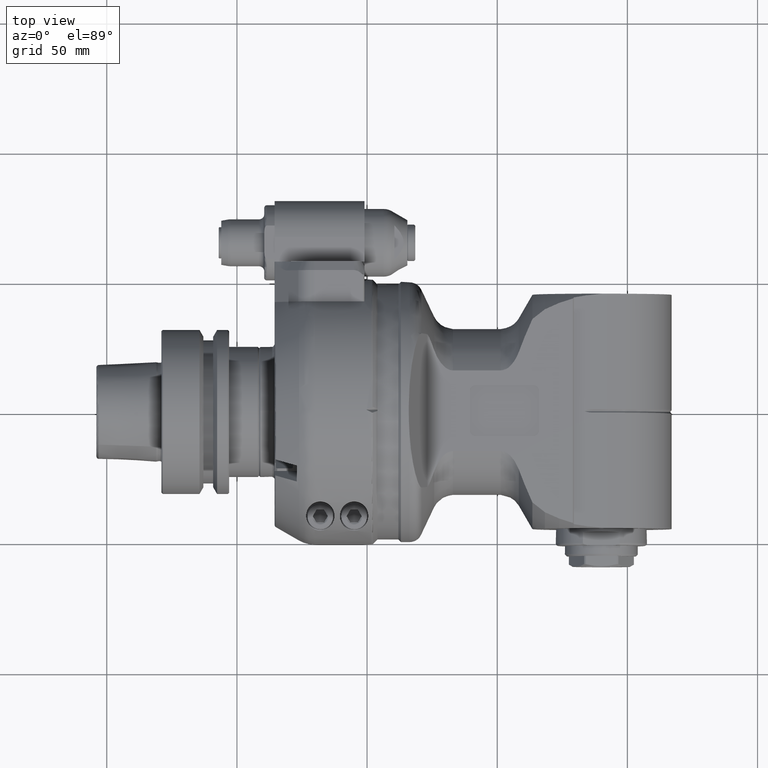
[diagram: clean part render]
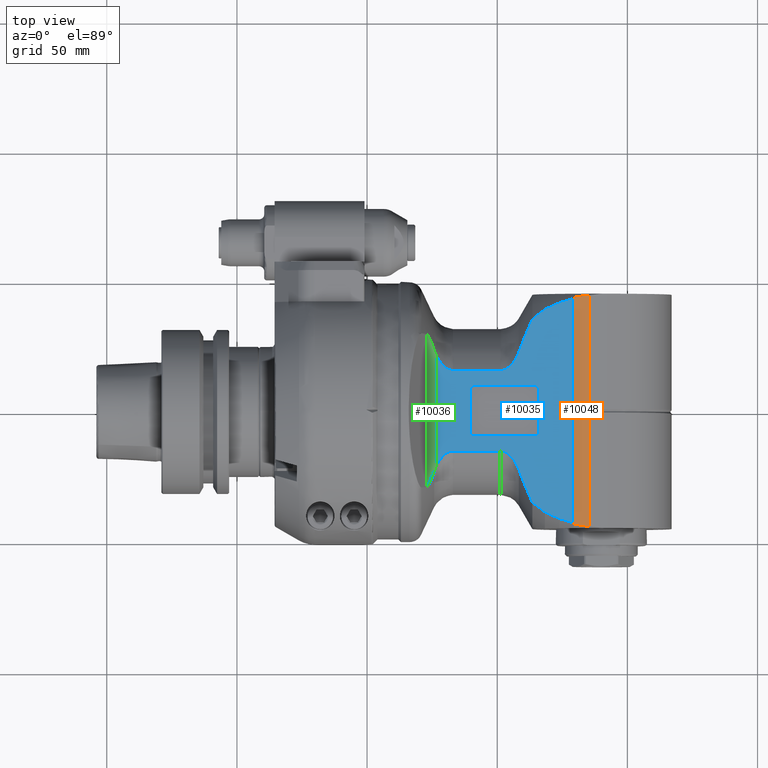
[diagram: same view with three faces highlighted in distinct colors, each labeled with its STEP entity id]
A machine part, top view with three faces highlighted in distinct colors.
Their STEP definitions:

[orange] entity #10048 — the highlighted planar face has unit normal (0, 0, 1).
#72=(
BOUNDED_CURVE()
B_SPLINE_CURVE(2,(#19118,#19119,#19120),.UNSPECIFIED.,.F.,.F.)
B_SPLINE_CURVE_WITH_KNOTS((3,3),(0.593022336846384,0.70157453803176),
 .UNSPECIFIED.)
CURVE()
GEOMETRIC_REPRESENTATION_ITEM()
RATIONAL_B_SPLINE_CURVE((1.00001437351432,1.00001457226138,1.00001436215645))
REPRESENTATION_ITEM('')
);
#73=(
BOUNDED_CURVE()
B_SPLINE_CURVE(2,(#19173,#19174,#19175),.UNSPECIFIED.,.F.,.F.)
B_SPLINE_CURVE_WITH_KNOTS((3,3),(0.590006767742405,0.698558968926819),
 .UNSPECIFIED.)
CURVE()
GEOMETRIC_REPRESENTATION_ITEM()
RATIONAL_B_SPLINE_CURVE((1.0000143621362,1.00001457224083,1.00001437349405))
REPRESENTATION_ITEM('')
);
#208=B_SPLINE_CURVE_WITH_KNOTS('',3,(#19124,#19125,#19126,#19127,#19128,
#19129,#19130,#19131,#19132,#19133,#19134,#19135,#19136),.UNSPECIFIED.,
 .F.,.F.,(4,3,3,3,4),(0.,0.25,0.5,0.75,1.),.UNSPECIFIED.);
#209=B_SPLINE_CURVE_WITH_KNOTS('',3,(#19138,#19139,#19140,#19141,#19142,
#19143,#19144,#19145,#19146,#19147,#19148,#19149,#19150,#19151,#19152,#19153,
#19154,#19155),.UNSPECIFIED.,.F.,.F.,(4,2,2,2,2,2,2,2,4),(-1.19105853373548,
-1.17004342643613,-1.15118076479886,-1.145947321921,-1.14167988908612,-1.13741245625123,
-1.13217901337337,-1.1133163517361,-1.09230124444175),.UNSPECIFIED.);
#210=B_SPLINE_CURVE_WITH_KNOTS('',3,(#19157,#19158,#19159,#19160,#19161,
#19162,#19163,#19164,#19165,#19166,#19167,#19168,#19169),.UNSPECIFIED.,
 .F.,.F.,(4,3,3,3,4),(0.,0.25,0.5,0.75,1.),.UNSPECIFIED.);
#640=LINE('',#19103,#1280);
#641=LINE('',#19122,#1281);
#642=LINE('',#19171,#1282);
#1280=VECTOR('',#12886,87.11621977575);
#1281=VECTOR('',#12893,43.8047902956104);
#1282=VECTOR('',#12894,43.8047903018304);
#1994=PLANE('',#10919);
#2366=FACE_OUTER_BOUND('',#2984,.T.);
#2984=EDGE_LOOP('',(#7804,#7805,#7806,#7807,#7808,#7809,#7810,#7811,#7812,
#7813));
#3690=CIRCLE('',#10920,5928.37642691631);
#3691=CIRCLE('',#10921,5928.23711777422);
#4546=VERTEX_POINT('',#19101);
#4547=VERTEX_POINT('',#19102);
#4549=VERTEX_POINT('',#19115);
#4550=VERTEX_POINT('',#19117);
#4551=VERTEX_POINT('',#19121);
#4552=VERTEX_POINT('',#19123);
#4553=VERTEX_POINT('',#19137);
#4554=VERTEX_POINT('',#19156);
#4555=VERTEX_POINT('',#19170);
#4556=VERTEX_POINT('',#19172);
#5766=EDGE_CURVE('',#4546,#4547,#640,.T.);
#5770=EDGE_CURVE('',#4549,#4547,#3690,.T.);
#5771=EDGE_CURVE('',#4549,#4550,#72,.T.);
#5772=EDGE_CURVE('',#4551,#4550,#641,.T.);
#5773=EDGE_CURVE('',#4552,#4551,#208,.T.);
#5774=EDGE_CURVE('',#4553,#4552,#209,.F.);
#5775=EDGE_CURVE('',#4554,#4553,#210,.T.);
#5776=EDGE_CURVE('',#4555,#4554,#642,.T.);
#5777=EDGE_CURVE('',#4555,#4556,#73,.T.);
#5778=EDGE_CURVE('',#4546,#4556,#3691,.T.);
#7804=ORIENTED_EDGE('',*,*,#5766,.T.);
#7805=ORIENTED_EDGE('',*,*,#5770,.F.);
#7806=ORIENTED_EDGE('',*,*,#5771,.T.);
#7807=ORIENTED_EDGE('',*,*,#5772,.F.);
#7808=ORIENTED_EDGE('',*,*,#5773,.F.);
#7809=ORIENTED_EDGE('',*,*,#5774,.F.);
#7810=ORIENTED_EDGE('',*,*,#5775,.F.);
#7811=ORIENTED_EDGE('',*,*,#5776,.F.);
#7812=ORIENTED_EDGE('',*,*,#5777,.T.);
#7813=ORIENTED_EDGE('',*,*,#5778,.F.);
#10048=ADVANCED_FACE('',(#2366),#1994,.T.);
#10919=AXIS2_PLACEMENT_3D('',#19114,#12889,#12890);
#10920=AXIS2_PLACEMENT_3D('',#19116,#12891,#12892);
#10921=AXIS2_PLACEMENT_3D('',#19176,#12895,#12896);
#12886=DIRECTION('',(0.,-1.,0.));
#12889=DIRECTION('center_axis',(0.,0.,1.));
#12890=DIRECTION('ref_axis',(1.,0.,0.));
#12891=DIRECTION('center_axis',(0.,0.,-1.));
#12892=DIRECTION('ref_axis',(-0.163953157776388,-0.986468125209908,0.));
#12893=DIRECTION('',(1.32764519473999E-7,-0.999999999999991,2.87918339461897E-9));
#12894=DIRECTION('',(-1.33097299006099E-7,-0.999999999999991,-2.88630361638497E-9));
#12895=DIRECTION('center_axis',(0.,0.,-1.));
#12896=DIRECTION('ref_axis',(-0.163128243155629,0.986604873434628,0.));
#19101=CARTESIAN_POINT('',(79.49,43.55810988787,27.5));
#19102=CARTESIAN_POINT('',(79.49,-43.55810988787,27.5));
#19103=CARTESIAN_POINT('',(79.49,43.55810988787,27.5));
#19114=CARTESIAN_POINT('Origin',(58.74015767835,0.8858735483008,27.5));
#19115=CARTESIAN_POINT('',(84.38034694252,-44.36879534087,27.5));
#19116=CARTESIAN_POINT('Origin',(1051.46603568003,5804.59626951088,27.5));
#19117=CARTESIAN_POINT('',(85.46381930714,-44.43558601805,27.5));
#19118=CARTESIAN_POINT('Ctrl Pts',(84.3803469425199,-44.3687953408727,27.5));
#19119=CARTESIAN_POINT('Ctrl Pts',(84.9216756794156,-44.4021725258532,27.5));
#19120=CARTESIAN_POINT('Ctrl Pts',(85.4638193071398,-44.4355860180531,27.5));
#19121=CARTESIAN_POINT('',(85.4638134737294,-0.630796224615689,27.4999996392381));
#19122=CARTESIAN_POINT('',(85.46381349142,-0.6307957224406,27.49999987388));
#19123=CARTESIAN_POINT('',(83.9104408465,-0.2828427124861,27.5));
#19124=CARTESIAN_POINT('Ctrl Pts',(83.9104408464989,-0.282842712489786,
27.4999999999965));
#19125=CARTESIAN_POINT('Ctrl Pts',(84.0417770461592,-0.320086378596211,
27.4999999999971));
#19126=CARTESIAN_POINT('Ctrl Pts',(84.1726077293787,-0.355264202941987,
27.4999998247939));
#19127=CARTESIAN_POINT('Ctrl Pts',(84.3028940438747,-0.38836316504666,27.4999999999957));
#19128=CARTESIAN_POINT('Ctrl Pts',(84.4331803583708,-0.421462127151333,
27.5000001751975));
#19129=CARTESIAN_POINT('Ctrl Pts',(84.5629221065104,-0.452483010856554,
27.4999999423099));
#19130=CARTESIAN_POINT('Ctrl Pts',(84.6922387873732,-0.481454240540171,
27.4999999999959));
#19131=CARTESIAN_POINT('Ctrl Pts',(84.821555468236,-0.510425470223787,27.5000000576819));
#19132=CARTESIAN_POINT('Ctrl Pts',(84.95044706657,-0.537347035917995,27.5000004195697));
#19133=CARTESIAN_POINT('Ctrl Pts',(85.079028833991,-0.562236327702291,27.4999999999983));
#19134=CARTESIAN_POINT('Ctrl Pts',(85.207610601412,-0.587125619486588,27.499999580427));
#19135=CARTESIAN_POINT('Ctrl Pts',(85.3358826989365,-0.609981882292008,
27.4999991174256));
#19136=CARTESIAN_POINT('Ctrl Pts',(85.4638133762397,-0.630796430365352,
27.4999991753881));
#19137=CARTESIAN_POINT('',(83.91044084645,0.2828427124746,27.5));
#19138=CARTESIAN_POINT('Ctrl Pts',(83.9104408464983,-0.282842712491837,
27.5));
#19139=CARTESIAN_POINT('Ctrl Pts',(83.8413902386131,-0.263261684634919,
27.5));
#19140=CARTESIAN_POINT('Ctrl Pts',(83.774541845351,-0.240117222930763,27.5));
#19141=CARTESIAN_POINT('Ctrl Pts',(83.6549369218228,-0.182117600377863,
27.5));
#19142=CARTESIAN_POINT('Ctrl Pts',(83.5906903120551,-0.14255533049815,27.5));
#19143=CARTESIAN_POINT('Ctrl Pts',(83.5417258196788,-0.0788855821805887,
27.5));
#19144=CARTESIAN_POINT('Ctrl Pts',(83.5311479100739,-0.0608209587944465,
27.5));
#19145=CARTESIAN_POINT('Ctrl Pts',(83.5204682585744,-0.0310064035765991,
27.5));
#19146=CARTESIAN_POINT('Ctrl Pts',(83.5173453260122,-0.0142247761162909,
27.5));
#19147=CARTESIAN_POINT('Ctrl Pts',(83.5173453260122,0.0142247761162909,
27.5));
#19148=CARTESIAN_POINT('Ctrl Pts',(83.5204682585744,0.0310064035765991,
27.5));
#19149=CARTESIAN_POINT('Ctrl Pts',(83.5311479100739,0.0608209587944465,
27.5));
#19150=CARTESIAN_POINT('Ctrl Pts',(83.5417258196788,0.0788855821805887,
27.5));
#19151=CARTESIAN_POINT('Ctrl Pts',(83.5906903120551,0.14255533049815,27.5));
#19152=CARTESIAN_POINT('Ctrl Pts',(83.6549369218228,0.182117600377863,27.5));
#19153=CARTESIAN_POINT('Ctrl Pts',(83.774541845336,0.240117222923484,27.5));
#19154=CARTESIAN_POINT('Ctrl Pts',(83.8413902385814,0.263261684623741,27.5));
#19155=CARTESIAN_POINT('Ctrl Pts',(83.9104408464491,0.282842712477874,27.5));
#19156=CARTESIAN_POINT('',(85.4638134591155,0.630796219652866,27.4999996383393));
#19157=CARTESIAN_POINT('Ctrl Pts',(85.4638133613813,0.630796425918243,27.4999991733291));
#19158=CARTESIAN_POINT('Ctrl Pts',(85.3358089866556,0.609969886850305,27.4999991151884));
#19159=CARTESIAN_POINT('Ctrl Pts',(85.2074808988703,0.58710225229209,27.4999995864679));
#19160=CARTESIAN_POINT('Ctrl Pts',(85.0788592441334,0.56220349887812,27.499999999997));
#19161=CARTESIAN_POINT('Ctrl Pts',(84.9502375893965,0.53730474546415,27.500000413526));
#19162=CARTESIAN_POINT('Ctrl Pts',(84.8213222117629,0.510375601707245,27.500000057343));
#19163=CARTESIAN_POINT('Ctrl Pts',(84.6920015986539,0.481401100307193,27.4999999999983));
#19164=CARTESIAN_POINT('Ctrl Pts',(84.5626809855448,0.452426598907142,27.4999999426535));
#19165=CARTESIAN_POINT('Ctrl Pts',(84.4329551513773,0.421406751811449,27.5000001686794));
#19166=CARTESIAN_POINT('Ctrl Pts',(84.3027080961397,0.388315924348248,27.4999999999989));
#19167=CARTESIAN_POINT('Ctrl Pts',(84.1724610409021,0.355225096885047,27.4999998313185));
#19168=CARTESIAN_POINT('Ctrl Pts',(84.0416929553091,0.320062532532814,27.4999999999967));
#19169=CARTESIAN_POINT('Ctrl Pts',(83.9104408464987,0.282842712490738,27.4999999999956));
#19170=CARTESIAN_POINT('',(85.46381930715,44.43558601805,27.5));
#19171=CARTESIAN_POINT('',(85.46381930715,44.43558601805,27.5));
#19172=CARTESIAN_POINT('',(84.38034694252,44.36879534087,27.5));
#19173=CARTESIAN_POINT('Ctrl Pts',(85.4638193071498,44.4355860180531,27.5));
#19174=CARTESIAN_POINT('Ctrl Pts',(84.9216756794354,44.4021725258538,27.5));
#19175=CARTESIAN_POINT('Ctrl Pts',(84.3803469425199,44.3687953408721,27.5));
#19176=CARTESIAN_POINT('Origin',(1051.44325297502,-5804.45883593123,27.5));

[blue] entity #10035 — the highlighted planar face has unit normal (0, 0, -1).
#57=(
BOUNDED_CURVE()
B_SPLINE_CURVE(2,(#18578,#18579,#18580),.UNSPECIFIED.,.F.,.F.)
B_SPLINE_CURVE_WITH_KNOTS((3,3),(2.0382950868947,3.4431407346025),
 .UNSPECIFIED.)
CURVE()
GEOMETRIC_REPRESENTATION_ITEM()
RATIONAL_B_SPLINE_CURVE((1.39120099195632,1.50411387899985,1.58683863347911))
REPRESENTATION_ITEM('')
);
#58=(
BOUNDED_CURVE()
B_SPLINE_CURVE(2,(#18582,#18583,#18584),.UNSPECIFIED.,.F.,.F.)
B_SPLINE_CURVE_WITH_KNOTS((3,3),(0.672313683726369,1.01595190649596),
 .UNSPECIFIED.)
CURVE()
GEOMETRIC_REPRESENTATION_ITEM()
RATIONAL_B_SPLINE_CURVE((1.09608826691963,1.11929872608591,1.14113299028535))
REPRESENTATION_ITEM('')
);
#59=(
BOUNDED_CURVE()
B_SPLINE_CURVE(2,(#18586,#18587,#18588),.UNSPECIFIED.,.F.,.F.)
B_SPLINE_CURVE_WITH_KNOTS((3,3),(0.468508734557086,0.914034860880229),
 .UNSPECIFIED.)
CURVE()
GEOMETRIC_REPRESENTATION_ITEM()
RATIONAL_B_SPLINE_CURVE((1.00816291257228,1.01172051799496,1.01466260362437))
REPRESENTATION_ITEM('')
);
#60=(
BOUNDED_CURVE()
B_SPLINE_CURVE(2,(#18590,#18591,#18592),.UNSPECIFIED.,.F.,.F.)
B_SPLINE_CURVE_WITH_KNOTS((3,3),(0.114463090604067,0.547281554987654),
 .UNSPECIFIED.)
CURVE()
GEOMETRIC_REPRESENTATION_ITEM()
RATIONAL_B_SPLINE_CURVE((1.00093169133583,1.00265764786769,1.00411481229898))
REPRESENTATION_ITEM('')
);
#61=(
BOUNDED_CURVE()
B_SPLINE_CURVE(2,(#18596,#18597,#18598),.UNSPECIFIED.,.F.,.F.)
B_SPLINE_CURVE_WITH_KNOTS((3,3),(5.24003672906914,5.67285525240857),
 .UNSPECIFIED.)
CURVE()
GEOMETRIC_REPRESENTATION_ITEM()
RATIONAL_B_SPLINE_CURVE((1.00411483084375,1.00265766715033,1.00093171134872))
REPRESENTATION_ITEM('')
);
#62=(
BOUNDED_CURVE()
B_SPLINE_CURVE(2,(#18600,#18601,#18602),.UNSPECIFIED.,.F.,.F.)
B_SPLINE_CURVE_WITH_KNOTS((3,3),(5.17304737846073,5.61856643365126),
 .UNSPECIFIED.)
CURVE()
GEOMETRIC_REPRESENTATION_ITEM()
RATIONAL_B_SPLINE_CURVE((1.01465966149285,1.01171745806901,1.0081597375251))
REPRESENTATION_ITEM('')
);
#63=(
BOUNDED_CURVE()
B_SPLINE_CURVE(2,(#18604,#18605,#18606),.UNSPECIFIED.,.F.,.F.)
B_SPLINE_CURVE_WITH_KNOTS((3,3),(11.9196096717836,12.2632385291226),
 .UNSPECIFIED.)
CURVE()
GEOMETRIC_REPRESENTATION_ITEM()
RATIONAL_B_SPLINE_CURVE((1.14111180490468,1.11927794606308,1.096067917804))
REPRESENTATION_ITEM('')
);
#64=(
BOUNDED_CURVE()
B_SPLINE_CURVE(2,(#18608,#18609,#18610),.UNSPECIFIED.,.F.,.F.)
B_SPLINE_CURVE_WITH_KNOTS((3,3),(11.1418606553672,12.5466422634136),
 .UNSPECIFIED.)
CURVE()
GEOMETRIC_REPRESENTATION_ITEM()
RATIONAL_B_SPLINE_CURVE((1.58677165264341,1.5040503899957,1.39114226903196))
REPRESENTATION_ITEM('')
);
#183=B_SPLINE_CURVE_WITH_KNOTS('',3,(#18484,#18485,#18486,#18487,#18488,
#18489,#18490,#18491,#18492,#18493,#18494,#18495),.UNSPECIFIED.,.F.,.F.,
(4,2,2,2,2,4),(2.93597407218818,3.06178101041217,3.21073255585265,3.42626231511953,
3.6417920743864,3.75064357301499),.UNSPECIFIED.);
#187=B_SPLINE_CURVE_WITH_KNOTS('',3,(#18563,#18564,#18565,#18566,#18567,
#18568,#18569,#18570,#18571,#18572,#18573,#18574,#18575,#18576),
 .UNSPECIFIED.,.F.,.F.,(4,2,2,2,2,2,4),(-3.92313274375493,-3.77858431950851,
-3.54205696695616,-3.36013929421605,-3.17822162147595,-3.04862540059965,
-2.93602857360432),.UNSPECIFIED.);
#188=B_SPLINE_CURVE_WITH_KNOTS('',3,(#18612,#18613,#18614,#18615,#18616,
#18617,#18618,#18619,#18620,#18621,#18622,#18623,#18624,#18625),
 .UNSPECIFIED.,.F.,.F.,(4,2,2,2,2,2,4),(-2.93597407218818,-2.82337724519285,
-2.69378102431655,-2.51186335157645,-2.32994567883634,-2.09341832628399,
-1.94886990203757),.UNSPECIFIED.);
#189=B_SPLINE_CURVE_WITH_KNOTS('',3,(#18628,#18629,#18630,#18631,#18632,
#18633,#18634,#18635,#18636,#18637,#18638,#18639),.UNSPECIFIED.,.F.,.F.,
(4,2,2,2,2,4),(-3.74855301569093,-3.54200246554002,-3.36008479279991,-3.17816712005981,
-3.04857089918352,-2.93597407218818),.UNSPECIFIED.);
#621=LINE('',#18558,#1261);
#622=LINE('',#18561,#1262);
#623=LINE('',#18594,#1263);
#624=LINE('',#18627,#1264);
#625=LINE('',#18642,#1265);
#626=LINE('',#18646,#1266);
#627=LINE('',#18650,#1267);
#628=LINE('',#18654,#1268);
#1261=VECTOR('',#12803,18.39109797347);
#1262=VECTOR('',#12806,41.77019528796);
#1263=VECTOR('',#12807,10.);
#1264=VECTOR('',#12808,18.39109797347);
#1265=VECTOR('',#12809,15.5);
#1266=VECTOR('',#12812,22.5);
#1267=VECTOR('',#12815,15.5);
#1268=VECTOR('',#12818,22.5);
#1856=FACE_BOUND('',#2969,.T.);
#1990=PLANE('',#10886);
#2353=FACE_OUTER_BOUND('',#2968,.T.);
#2968=EDGE_LOOP('',(#7693,#7694,#7695,#7696,#7697,#7698,#7699,#7700,#7701,
#7702,#7703,#7704,#7705,#7706,#7707,#7708));
#2969=EDGE_LOOP('',(#7709,#7710,#7711,#7712,#7713,#7714,#7715,#7716));
#3673=CIRCLE('',#10887,2.);
#3674=CIRCLE('',#10888,2.);
#3675=CIRCLE('',#10889,2.);
#3676=CIRCLE('',#10890,2.);
#4483=VERTEX_POINT('',#18481);
#4484=VERTEX_POINT('',#18483);
#4487=VERTEX_POINT('',#18556);
#4488=VERTEX_POINT('',#18560);
#4489=VERTEX_POINT('',#18562);
#4490=VERTEX_POINT('',#18577);
#4491=VERTEX_POINT('',#18581);
#4492=VERTEX_POINT('',#18585);
#4493=VERTEX_POINT('',#18589);
#4494=VERTEX_POINT('',#18593);
#4495=VERTEX_POINT('',#18595);
#4496=VERTEX_POINT('',#18599);
#4497=VERTEX_POINT('',#18603);
#4498=VERTEX_POINT('',#18607);
#4499=VERTEX_POINT('',#18611);
#4500=VERTEX_POINT('',#18626);
#4501=VERTEX_POINT('',#18640);
#4502=VERTEX_POINT('',#18641);
#4503=VERTEX_POINT('',#18643);
#4504=VERTEX_POINT('',#18645);
#4505=VERTEX_POINT('',#18647);
#4506=VERTEX_POINT('',#18649);
#4507=VERTEX_POINT('',#18651);
#4508=VERTEX_POINT('',#18653);
#5688=EDGE_CURVE('',#4483,#4484,#183,.T.);
#5694=EDGE_CURVE('',#4487,#4483,#621,.T.);
#5695=EDGE_CURVE('',#4484,#4488,#622,.T.);
#5696=EDGE_CURVE('',#4489,#4487,#187,.T.);
#5697=EDGE_CURVE('',#4490,#4489,#57,.T.);
#5698=EDGE_CURVE('',#4491,#4490,#58,.T.);
#5699=EDGE_CURVE('',#4492,#4491,#59,.T.);
#5700=EDGE_CURVE('',#4493,#4492,#60,.T.);
#5701=EDGE_CURVE('',#4494,#4493,#623,.T.);
#5702=EDGE_CURVE('',#4495,#4494,#61,.T.);
#5703=EDGE_CURVE('',#4496,#4495,#62,.T.);
#5704=EDGE_CURVE('',#4497,#4496,#63,.T.);
#5705=EDGE_CURVE('',#4498,#4497,#64,.T.);
#5706=EDGE_CURVE('',#4499,#4498,#188,.T.);
#5707=EDGE_CURVE('',#4500,#4499,#624,.T.);
#5708=EDGE_CURVE('',#4488,#4500,#189,.T.);
#5709=EDGE_CURVE('',#4501,#4502,#625,.T.);
#5710=EDGE_CURVE('',#4502,#4503,#3673,.T.);
#5711=EDGE_CURVE('',#4503,#4504,#626,.T.);
#5712=EDGE_CURVE('',#4504,#4505,#3674,.T.);
#5713=EDGE_CURVE('',#4505,#4506,#627,.T.);
#5714=EDGE_CURVE('',#4506,#4507,#3675,.T.);
#5715=EDGE_CURVE('',#4507,#4508,#628,.T.);
#5716=EDGE_CURVE('',#4508,#4501,#3676,.T.);
#7693=ORIENTED_EDGE('',*,*,#5695,.F.);
#7694=ORIENTED_EDGE('',*,*,#5688,.F.);
#7695=ORIENTED_EDGE('',*,*,#5694,.F.);
#7696=ORIENTED_EDGE('',*,*,#5696,.F.);
#7697=ORIENTED_EDGE('',*,*,#5697,.F.);
#7698=ORIENTED_EDGE('',*,*,#5698,.F.);
#7699=ORIENTED_EDGE('',*,*,#5699,.F.);
#7700=ORIENTED_EDGE('',*,*,#5700,.F.);
#7701=ORIENTED_EDGE('',*,*,#5701,.F.);
#7702=ORIENTED_EDGE('',*,*,#5702,.F.);
#7703=ORIENTED_EDGE('',*,*,#5703,.F.);
#7704=ORIENTED_EDGE('',*,*,#5704,.F.);
#7705=ORIENTED_EDGE('',*,*,#5705,.F.);
#7706=ORIENTED_EDGE('',*,*,#5706,.F.);
#7707=ORIENTED_EDGE('',*,*,#5707,.F.);
#7708=ORIENTED_EDGE('',*,*,#5708,.F.);
#7709=ORIENTED_EDGE('',*,*,#5709,.T.);
#7710=ORIENTED_EDGE('',*,*,#5710,.T.);
#7711=ORIENTED_EDGE('',*,*,#5711,.T.);
#7712=ORIENTED_EDGE('',*,*,#5712,.T.);
#7713=ORIENTED_EDGE('',*,*,#5713,.T.);
#7714=ORIENTED_EDGE('',*,*,#5714,.T.);
#7715=ORIENTED_EDGE('',*,*,#5715,.T.);
#7716=ORIENTED_EDGE('',*,*,#5716,.T.);
#10035=ADVANCED_FACE('',(#2353,#1856),#1990,.F.);
#10886=AXIS2_PLACEMENT_3D('',#18559,#12804,#12805);
#10887=AXIS2_PLACEMENT_3D('',#18644,#12810,#12811);
#10888=AXIS2_PLACEMENT_3D('',#18648,#12813,#12814);
#10889=AXIS2_PLACEMENT_3D('',#18652,#12816,#12817);
#10890=AXIS2_PLACEMENT_3D('',#18655,#12819,#12820);
#12803=DIRECTION('',(-1.,0.,0.));
#12804=DIRECTION('center_axis',(0.,0.,-1.));
#12805=DIRECTION('ref_axis',(-1.,0.,0.));
#12806=DIRECTION('',(-2.652096441983E-11,1.,6.243799181756E-13));
#12807=DIRECTION('',(0.,-1.,0.));
#12808=DIRECTION('',(1.,0.,0.));
#12809=DIRECTION('',(0.,1.,0.));
#12810=DIRECTION('center_axis',(0.,0.,-1.));
#12811=DIRECTION('ref_axis',(-1.,0.,0.));
#12812=DIRECTION('',(1.,0.,0.));
#12813=DIRECTION('center_axis',(0.,0.,-1.));
#12814=DIRECTION('ref_axis',(0.,1.,0.));
#12815=DIRECTION('',(0.,-1.,0.));
#12816=DIRECTION('center_axis',(0.,0.,-1.));
#12817=DIRECTION('ref_axis',(1.,0.,0.));
#12818=DIRECTION('',(-1.,0.,0.));
#12819=DIRECTION('center_axis',(0.,0.,-1.));
#12820=DIRECTION('ref_axis',(0.,-1.,0.));
#18481=CARTESIAN_POINT('',(32.99009987301,-15.49193338483,28.));
#18483=CARTESIAN_POINT('',(26.80083020115,-20.88509764292,27.99999999999));
#18484=CARTESIAN_POINT('Ctrl Pts',(32.99009987301,-15.4919333848297,28.));
#18485=CARTESIAN_POINT('Ctrl Pts',(32.5707434122634,-15.4919333848297,28.));
#18486=CARTESIAN_POINT('Ctrl Pts',(32.0752042743193,-15.5795640532649,28.));
#18487=CARTESIAN_POINT('Ctrl Pts',(31.2080074002573,-15.8741350537825,28.));
#18488=CARTESIAN_POINT('Ctrl Pts',(30.6847533920019,-16.1590740807169,28.));
#18489=CARTESIAN_POINT('Ctrl Pts',(29.69452279622,-16.8630037215125,28.));
#18490=CARTESIAN_POINT('Ctrl Pts',(29.1325458604225,-17.407552366296,28.));
#18491=CARTESIAN_POINT('Ctrl Pts',(28.1323512917126,-18.6085394528521,28.));
#18492=CARTESIAN_POINT('Ctrl Pts',(27.6932483097344,-19.2642402902718,28.));
#18493=CARTESIAN_POINT('Ctrl Pts',(27.1514292839165,-20.1999639755514,28.));
#18494=CARTESIAN_POINT('Ctrl Pts',(26.9719387320804,-20.5356509779369,28.));
#18495=CARTESIAN_POINT('Ctrl Pts',(26.8008302011161,-20.8850976429034,28.));
#18556=CARTESIAN_POINT('',(51.38119784648,-15.49193338483,28.));
#18558=CARTESIAN_POINT('',(51.38119784648,-15.49193338483,28.));
#18559=CARTESIAN_POINT('Origin',(65.03992163408,-45.,28.));
#18560=CARTESIAN_POINT('',(26.80083020004,20.88509764504,28.00000000002));
#18561=CARTESIAN_POINT('',(26.80083020115,-20.88509764292,27.99999999999));
#18562=CARTESIAN_POINT('',(58.30940107676,-22.62741699797,28.));
#18563=CARTESIAN_POINT('Ctrl Pts',(58.3094010767562,-22.6274169979714,28.));
#18564=CARTESIAN_POINT('Ctrl Pts',(58.1351990449167,-22.1473726465381,28.));
#18565=CARTESIAN_POINT('Ctrl Pts',(57.9345741249346,-21.6588360308127,28.));
#18566=CARTESIAN_POINT('Ctrl Pts',(57.3473059591154,-20.3989143849032,28.));
#18567=CARTESIAN_POINT('Ctrl Pts',(56.9216365696334,-19.6460707325903,28.));
#18568=CARTESIAN_POINT('Ctrl Pts',(56.138105696541,-18.4921239661789,28.));
#18569=CARTESIAN_POINT('Ctrl Pts',(55.7304165671847,-17.9652022129463,28.));
#18570=CARTESIAN_POINT('Ctrl Pts',(54.820668957877,-17.0081024201193,28.));
#18571=CARTESIAN_POINT('Ctrl Pts',(54.317498824113,-16.5789816504194,28.));
#18572=CARTESIAN_POINT('Ctrl Pts',(53.4402390877892,-16.0234209939818,28.));
#18573=CARTESIAN_POINT('Ctrl Pts',(52.9735728260955,-15.7977099228234,28.));
#18574=CARTESIAN_POINT('Ctrl Pts',(52.201408746999,-15.5620993782773,28.));
#18575=CARTESIAN_POINT('Ctrl Pts',(51.7565206031311,-15.4919333848297,28.));
#18576=CARTESIAN_POINT('Ctrl Pts',(51.38119784648,-15.4919333848297,28.));
#18577=CARTESIAN_POINT('',(63.5055535658776,-35.2278300211625,27.99999996634));
#18578=CARTESIAN_POINT('Ctrl Pts',(63.5055535533526,-35.2278300268482,28.));
#18579=CARTESIAN_POINT('Ctrl Pts',(60.3416369571524,-28.2276005599077,28.));
#18580=CARTESIAN_POINT('Ctrl Pts',(58.3094010767572,-22.627416997971,28.));
#18581=CARTESIAN_POINT('',(68.3065571929755,-38.9871774622516,27.9999999732585));
#18582=CARTESIAN_POINT('Ctrl Pts',(68.3065571936826,-38.9871774616234,28.));
#18583=CARTESIAN_POINT('Ctrl Pts',(65.7844584198391,-37.0468690861186,28.));
#18584=CARTESIAN_POINT('Ctrl Pts',(63.5055535954065,-35.2278299841956,28.));
#18585=CARTESIAN_POINT('',(73.8015119749749,-41.4246303787627,27.9999999918341));
#18586=CARTESIAN_POINT('Ctrl Pts',(73.8015119759787,-41.4246303765944,28.));
#18587=CARTESIAN_POINT('Ctrl Pts',(70.9707527072471,-40.1810319362421,28.));
#18588=CARTESIAN_POINT('Ctrl Pts',(68.306557206251,-38.9871774328593,28.));
#18589=CARTESIAN_POINT('',(78.9900004606588,-43.0924350883711,27.9999998116501));
#18590=CARTESIAN_POINT('Ctrl Pts',(78.9900005706636,-43.0924347540951,28.));
#18591=CARTESIAN_POINT('Ctrl Pts',(76.3445631570026,-42.2470981928428,28.));
#18592=CARTESIAN_POINT('Ctrl Pts',(73.8015119774522,-41.4246303712171,28.));
#18593=CARTESIAN_POINT('',(78.9900004606588,43.092435088371,27.9999998116501));
#18594=CARTESIAN_POINT('',(78.99,-22.5,28.));
#18595=CARTESIAN_POINT('',(73.8015119749706,41.4246303787606,27.9999999918348));
#18596=CARTESIAN_POINT('Ctrl Pts',(73.8015119774477,41.4246303712157,28.));
#18597=CARTESIAN_POINT('Ctrl Pts',(76.3445631570002,42.247098192842,28.));
#18598=CARTESIAN_POINT('Ctrl Pts',(78.9900005706636,43.0924347540951,28.));
#18599=CARTESIAN_POINT('',(68.3065571929732,38.9871774622499,27.999999973259));
#18600=CARTESIAN_POINT('Ctrl Pts',(68.3065572062484,38.9871774328581,28.));
#18601=CARTESIAN_POINT('Ctrl Pts',(70.9707527072437,40.1810319362406,28.));
#18602=CARTESIAN_POINT('Ctrl Pts',(73.8015119759744,41.4246303765925,28.));
#18603=CARTESIAN_POINT('',(63.5055535658769,35.2278300211613,27.9999999663403));
#18604=CARTESIAN_POINT('Ctrl Pts',(63.5055535954055,35.2278299841948,28.));
#18605=CARTESIAN_POINT('Ctrl Pts',(65.7844584198376,37.0468690861174,28.));
#18606=CARTESIAN_POINT('Ctrl Pts',(68.3065571936803,38.9871774616216,28.));
#18607=CARTESIAN_POINT('',(58.30940107676,22.62741699797,28.));
#18608=CARTESIAN_POINT('Ctrl Pts',(58.3094010767572,22.627416997971,28.));
#18609=CARTESIAN_POINT('Ctrl Pts',(60.3416369571522,28.2276005599072,28.));
#18610=CARTESIAN_POINT('Ctrl Pts',(63.505553553352,35.2278300268469,28.));
#18611=CARTESIAN_POINT('',(51.38119784648,15.49193338483,28.));
#18612=CARTESIAN_POINT('Ctrl Pts',(51.38119784648,15.4919333848297,28.));
#18613=CARTESIAN_POINT('Ctrl Pts',(51.7565206031311,15.4919333848297,28.));
#18614=CARTESIAN_POINT('Ctrl Pts',(52.201408746999,15.5620993782773,28.));
#18615=CARTESIAN_POINT('Ctrl Pts',(52.9735728260955,15.7977099228234,28.));
#18616=CARTESIAN_POINT('Ctrl Pts',(53.4402390877892,16.0234209939818,28.));
#18617=CARTESIAN_POINT('Ctrl Pts',(54.317498824113,16.5789816504194,28.));
#18618=CARTESIAN_POINT('Ctrl Pts',(54.820668957877,17.0081024201193,28.));
#18619=CARTESIAN_POINT('Ctrl Pts',(55.7304165671847,17.9652022129463,28.));
#18620=CARTESIAN_POINT('Ctrl Pts',(56.138105696541,18.4921239661789,28.));
#18621=CARTESIAN_POINT('Ctrl Pts',(56.9216365696334,19.6460707325903,28.));
#18622=CARTESIAN_POINT('Ctrl Pts',(57.3473059591154,20.3989143849032,28.));
#18623=CARTESIAN_POINT('Ctrl Pts',(57.9345741249346,21.6588360308126,28.));
#18624=CARTESIAN_POINT('Ctrl Pts',(58.1351990449167,22.1473726465381,28.));
#18625=CARTESIAN_POINT('Ctrl Pts',(58.3094010767562,22.6274169979714,28.));
#18626=CARTESIAN_POINT('',(32.99009987301,15.49193338483,28.));
#18627=CARTESIAN_POINT('',(32.99009987301,15.49193338483,28.));
#18628=CARTESIAN_POINT('Ctrl Pts',(26.8008302000641,20.8850976450518,28.));
#18629=CARTESIAN_POINT('Ctrl Pts',(27.1316615888732,20.2094567236125,28.));
#18630=CARTESIAN_POINT('Ctrl Pts',(27.505792179594,19.5634036386887,28.));
#18631=CARTESIAN_POINT('Ctrl Pts',(28.233192022949,18.4921239661789,28.));
#18632=CARTESIAN_POINT('Ctrl Pts',(28.6408811523053,17.9652022129463,28.));
#18633=CARTESIAN_POINT('Ctrl Pts',(29.550628761613,17.0081024201193,28.));
#18634=CARTESIAN_POINT('Ctrl Pts',(30.053798895377,16.5789816504194,28.));
#18635=CARTESIAN_POINT('Ctrl Pts',(30.9310586317008,16.0234209939818,28.));
#18636=CARTESIAN_POINT('Ctrl Pts',(31.3977248933945,15.7977099228234,28.));
#18637=CARTESIAN_POINT('Ctrl Pts',(32.1698889724911,15.5620993782773,28.));
#18638=CARTESIAN_POINT('Ctrl Pts',(32.6147771163589,15.4919333848297,28.));
#18639=CARTESIAN_POINT('Ctrl Pts',(32.99009987301,15.4919333848297,28.));
#18640=CARTESIAN_POINT('',(39.5,-7.75,28.));
#18641=CARTESIAN_POINT('',(39.5,7.75,28.));
#18642=CARTESIAN_POINT('',(39.5,-7.75,28.));
#18643=CARTESIAN_POINT('',(41.5,9.75,28.));
#18644=CARTESIAN_POINT('Origin',(41.5,7.75,28.));
#18645=CARTESIAN_POINT('',(64.,9.75,28.));
#18646=CARTESIAN_POINT('',(41.5,9.75,28.));
#18647=CARTESIAN_POINT('',(66.,7.75,28.));
#18648=CARTESIAN_POINT('Origin',(64.,7.75,28.));
#18649=CARTESIAN_POINT('',(66.,-7.75,28.));
#18650=CARTESIAN_POINT('',(66.,7.75,28.));
#18651=CARTESIAN_POINT('',(64.,-9.75,28.));
#18652=CARTESIAN_POINT('Origin',(64.,-7.75,28.));
#18653=CARTESIAN_POINT('',(41.5,-9.75,28.));
#18654=CARTESIAN_POINT('',(64.,-9.75,28.));
#18655=CARTESIAN_POINT('Origin',(41.5,-7.75,28.));

[green] entity #10036 — the highlighted cylindrical surface (edge-blend (fillet) strip) has radius 4 mm, axis along (0, 1, 0).
#181=B_SPLINE_CURVE_WITH_KNOTS('',3,(#18318,#18319,#18320,#18321,#18322,
#18323,#18324,#18325,#18326,#18327,#18328,#18329,#18330,#18331,#18332,#18333,
#18334,#18335,#18336,#18337,#18338,#18339,#18340,#18341,#18342,#18343,#18344,
#18345,#18346,#18347,#18348,#18349,#18350,#18351,#18352,#18353,#18354,#18355,
#18356,#18357,#18358,#18359,#18360,#18361,#18362,#18363,#18364,#18365,#18366,
#18367,#18368,#18369,#18370,#18371,#18372,#18373,#18374,#18375,#18376,#18377,
#18378,#18379,#18380,#18381,#18382,#18383,#18384,#18385,#18386,#18387,#18388,
#18389,#18390,#18391,#18392,#18393,#18394,#18395,#18396),.UNSPECIFIED.,
 .F.,.F.,(4,3,3,3,3,3,3,3,3,3,3,3,3,3,3,3,3,3,3,3,3,3,3,3,3,3,4),(3.11701163427516E-12,
0.04545454545455,0.0882547023404193,0.09090909090909,0.1363636363636,0.178506747562568,
0.1818181818182,0.224736775173782,0.2272727272727,0.270246898059618,0.2727272727273,
0.3181818181818,0.3636363636364,0.4090909090909,0.4545454545455,0.5,0.5454545454545,
0.5909090909091,0.6363636363636,0.6818181818182,0.7272727272727,0.7727272727273,
0.8181818181818,0.8636363636364,0.9090909090909,0.9545454545455,1.),
 .UNSPECIFIED.);
#184=B_SPLINE_CURVE_WITH_KNOTS('',3,(#18496,#18497,#18498,#18499,#18500,
#18501,#18502,#18503,#18504,#18505,#18506,#18507,#18508,#18509,#18510,#18511,
#18512,#18513,#18514,#18515,#18516,#18517),.UNSPECIFIED.,.F.,.F.,(4,3,3,
3,3,3,3,4),(0.,0.25,0.40572726657262,0.5,0.654177555585043,0.75,0.935703194467959,
1.),.UNSPECIFIED.);
#190=B_SPLINE_CURVE_WITH_KNOTS('',3,(#18658,#18659,#18660,#18661,#18662,
#18663,#18664,#18665,#18666,#18667,#18668,#18669,#18670,#18671,#18672,#18673,
#18674,#18675,#18676,#18677,#18678,#18679),.UNSPECIFIED.,.F.,.F.,(4,3,3,
3,3,3,3,4),(0.,0.185696689482833,0.25,0.404185613397683,0.5,0.65573592806578,
0.75,1.),.UNSPECIFIED.);
#191=B_SPLINE_CURVE_WITH_KNOTS('',3,(#18681,#18682,#18683,#18684,#18685,
#18686,#18687,#18688,#18689,#18690,#18691,#18692,#18693,#18694,#18695,#18696,
#18697,#18698,#18699,#18700,#18701,#18702,#18703,#18704,#18705,#18706,#18707,
#18708,#18709,#18710,#18711,#18712,#18713,#18714,#18715,#18716,#18717,#18718,
#18719,#18720,#18721,#18722,#18723,#18724,#18725,#18726,#18727,#18728,#18729,
#18730,#18731,#18732,#18733,#18734,#18735,#18736,#18737,#18738,#18739,#18740,
#18741,#18742,#18743,#18744,#18745,#18746,#18747,#18748,#18749,#18750,#18751,
#18752,#18753,#18754,#18755,#18756,#18757,#18758,#18759),.UNSPECIFIED.,
 .F.,.F.,(4,3,3,3,3,3,3,3,3,3,3,3,3,3,3,3,3,3,3,3,3,3,3,3,3,3,4),(4.14190627541307E-12,
0.04545454545455,0.09090909090909,0.1363636363636,0.1818181818182,0.2272727272727,
0.2727272727273,0.3181818181818,0.3636363636364,0.4090909090909,0.4545454545455,
0.5,0.5454545454545,0.5909090909091,0.6363636363636,0.6818181818182,0.7272727272727,
0.769639723937953,0.7727272727273,0.815385686813772,0.8181818181818,0.86026224492371,
0.8636363636364,0.9090909090909,0.951760481812339,0.9545454545455,1.),
 .UNSPECIFIED.);
#622=LINE('',#18561,#1262);
#629=LINE('',#18760,#1269);
#1262=VECTOR('',#12806,41.77019528796);
#1269=VECTOR('',#12823,58.64425386089);
#1735=CYLINDRICAL_SURFACE('',#10891,4.);
#2354=FACE_OUTER_BOUND('',#2970,.T.);
#2970=EDGE_LOOP('',(#7717,#7718,#7719,#7720,#7721,#7722));
#4478=VERTEX_POINT('',#18314);
#4480=VERTEX_POINT('',#18317);
#4484=VERTEX_POINT('',#18483);
#4488=VERTEX_POINT('',#18560);
#4509=VERTEX_POINT('',#18657);
#4510=VERTEX_POINT('',#18680);
#5683=EDGE_CURVE('',#4478,#4480,#181,.T.);
#5689=EDGE_CURVE('',#4478,#4484,#184,.T.);
#5695=EDGE_CURVE('',#4484,#4488,#622,.T.);
#5717=EDGE_CURVE('',#4488,#4509,#190,.T.);
#5718=EDGE_CURVE('',#4510,#4509,#191,.T.);
#5719=EDGE_CURVE('',#4510,#4480,#629,.T.);
#7717=ORIENTED_EDGE('',*,*,#5695,.T.);
#7718=ORIENTED_EDGE('',*,*,#5717,.T.);
#7719=ORIENTED_EDGE('',*,*,#5718,.F.);
#7720=ORIENTED_EDGE('',*,*,#5719,.T.);
#7721=ORIENTED_EDGE('',*,*,#5683,.F.);
#7722=ORIENTED_EDGE('',*,*,#5689,.T.);
#10036=ADVANCED_FACE('',(#2354),#1735,.F.);
#10891=AXIS2_PLACEMENT_3D('',#18656,#12821,#12822);
#12806=DIRECTION('',(-2.652096441983E-11,1.,6.243799181756E-13));
#12821=DIRECTION('center_axis',(0.,1.,0.));
#12822=DIRECTION('ref_axis',(1.,0.,0.));
#12823=DIRECTION('',(5.839985609652E-14,-1.,-1.60660185029E-13));
#18314=CARTESIAN_POINT('',(25.73963757672,-23.42878235573,28.1433343139));
#18317=CARTESIAN_POINT('',(23.04205971778,-29.32212693045,30.6319194267));
#18318=CARTESIAN_POINT('Ctrl Pts',(25.7396375767134,-23.4287823557277,28.1433343139015));
#18319=CARTESIAN_POINT('Ctrl Pts',(25.6629107557697,-23.6605989642609,28.1644463166239));
#18320=CARTESIAN_POINT('Ctrl Pts',(25.5868404922193,-23.885749139815,28.1878401304321));
#18321=CARTESIAN_POINT('Ctrl Pts',(25.5115025405465,-24.1044408947351,28.2134931421961));
#18322=CARTESIAN_POINT('Ctrl Pts',(25.4405640652183,-24.3103618059941,28.2376481066159));
#18323=CARTESIAN_POINT('Ctrl Pts',(25.3702763489908,-24.5105565713385,28.2638107063036));
#18324=CARTESIAN_POINT('Ctrl Pts',(25.3009358194066,-24.7045196383723,28.291858033421));
#18325=CARTESIAN_POINT('Ctrl Pts',(25.296635444771,-24.7165488781073,28.2935974780842));
#18326=CARTESIAN_POINT('Ctrl Pts',(25.2923387068622,-24.7285541491305,28.2953441565279));
#18327=CARTESIAN_POINT('Ctrl Pts',(25.2880456737588,-24.7405353308484,28.2970980333822));
#18328=CARTESIAN_POINT('Ctrl Pts',(25.2145304881391,-24.9457046777266,28.3271319463293));
#18329=CARTESIAN_POINT('Ctrl Pts',(25.1421034432471,-25.1438100371831,28.3592810010705));
#18330=CARTESIAN_POINT('Ctrl Pts',(25.071053461981,-25.3344762039963,28.3933571796717));
#18331=CARTESIAN_POINT('Ctrl Pts',(25.0051795822349,-25.511252044334,28.4249508557203));
#18332=CARTESIAN_POINT('Ctrl Pts',(24.9404894642352,-25.6816331231213,28.4582014269665));
#18333=CARTESIAN_POINT('Ctrl Pts',(24.8772351342713,-25.8452894765877,28.4928954934925));
#18334=CARTESIAN_POINT('Ctrl Pts',(24.8722648663177,-25.8581489271504,28.4956216121177));
#18335=CARTESIAN_POINT('Ctrl Pts',(24.8673034471992,-25.8709668580677,28.4983566218368));
#18336=CARTESIAN_POINT('Ctrl Pts',(24.8623509908628,-25.8837431092603,28.501100408389));
#18337=CARTESIAN_POINT('Ctrl Pts',(24.7981635593133,-26.0493326052965,28.5366618751724));
#18338=CARTESIAN_POINT('Ctrl Pts',(24.7354842293229,-26.207920723329,28.5737010691003));
#18339=CARTESIAN_POINT('Ctrl Pts',(24.6745326576122,-26.3593139074905,28.6119535485293));
#18340=CARTESIAN_POINT('Ctrl Pts',(24.6709311820248,-26.3682593512508,28.6142137916527));
#18341=CARTESIAN_POINT('Ctrl Pts',(24.6673357278938,-26.3771796751093,28.6164782601549));
#18342=CARTESIAN_POINT('Ctrl Pts',(24.663746336451,-26.3860748391364,28.6187468955687));
#18343=CARTESIAN_POINT('Ctrl Pts',(24.6029206130667,-26.5368120309948,28.6571911255552));
#18344=CARTESIAN_POINT('Ctrl Pts',(24.5438388903242,-26.680324176388,28.6968349352264));
#18345=CARTESIAN_POINT('Ctrl Pts',(24.4866891750487,-26.8165244573476,28.7373704910947));
#18346=CARTESIAN_POINT('Ctrl Pts',(24.4833906191153,-26.8243856381554,28.7397101142701));
#18347=CARTESIAN_POINT('Ctrl Pts',(24.4800984879581,-26.8322224606229,28.742052699412));
#18348=CARTESIAN_POINT('Ctrl Pts',(24.4768128135131,-26.8400349080569,28.7443981842015));
#18349=CARTESIAN_POINT('Ctrl Pts',(24.4166006043025,-26.9832032977468,28.7873807812933));
#18350=CARTESIAN_POINT('Ctrl Pts',(24.3585604862096,-27.1181858091032,28.8313396906922));
#18351=CARTESIAN_POINT('Ctrl Pts',(24.3028413627232,-27.2450834585131,28.8758918449829));
#18352=CARTESIAN_POINT('Ctrl Pts',(24.2471222392366,-27.3719811079232,28.9204439992738));
#18353=CARTESIAN_POINT('Ctrl Pts',(24.1937229930371,-27.4907938953868,28.9655879792791));
#18354=CARTESIAN_POINT('Ctrl Pts',(24.1426885562105,-27.6018682977069,29.010972901317));
#18355=CARTESIAN_POINT('Ctrl Pts',(24.0916541193841,-27.7129427000267,29.0563578233548));
#18356=CARTESIAN_POINT('Ctrl Pts',(24.0429838868571,-27.8162787172033,29.1019830397037));
#18357=CARTESIAN_POINT('Ctrl Pts',(23.9966661771408,-27.9123468748732,29.1475161476807));
#18358=CARTESIAN_POINT('Ctrl Pts',(23.9503484674244,-28.0084150325433,29.1930492556577));
#18359=CARTESIAN_POINT('Ctrl Pts',(23.9063816640142,-28.0972153307067,29.2384885422323));
#18360=CARTESIAN_POINT('Ctrl Pts',(23.8646413320244,-28.1794198972452,29.2836062645166));
#18361=CARTESIAN_POINT('Ctrl Pts',(23.8229010000347,-28.2616244637834,29.3287239868008));
#18362=CARTESIAN_POINT('Ctrl Pts',(23.7833886166486,-28.3372332986967,29.3735215512827));
#18363=CARTESIAN_POINT('Ctrl Pts',(23.7460633299552,-28.4067443994283,29.4176755889207));
#18364=CARTESIAN_POINT('Ctrl Pts',(23.7087380432618,-28.47625550016,29.4618296265587));
#18365=CARTESIAN_POINT('Ctrl Pts',(23.6735965621641,-28.5396688667099,29.5053373669119));
#18366=CARTESIAN_POINT('Ctrl Pts',(23.6404061393093,-28.5978080542199,29.5481191401717));
#18367=CARTESIAN_POINT('Ctrl Pts',(23.6072157164545,-28.65594724173,29.5909009134317));
#18368=CARTESIAN_POINT('Ctrl Pts',(23.5759776543739,-28.7088122502,29.6329576830519));
#18369=CARTESIAN_POINT('Ctrl Pts',(23.5465388690215,-28.7570272823384,29.6741479137464));
#18370=CARTESIAN_POINT('Ctrl Pts',(23.5171000836691,-28.8052423144767,29.7153381444408));
#18371=CARTESIAN_POINT('Ctrl Pts',(23.489458563569,-28.8488073702833,29.7556604624613));
#18372=CARTESIAN_POINT('Ctrl Pts',(23.4633585311682,-28.8884683335183,29.795168293587));
#18373=CARTESIAN_POINT('Ctrl Pts',(23.4372584987672,-28.9281292967533,29.8346761247128));
#18374=CARTESIAN_POINT('Ctrl Pts',(23.4126992742514,-28.9638861674167,29.8733689325351));
#18375=CARTESIAN_POINT('Ctrl Pts',(23.3894016105992,-28.9964078538084,29.9114227394846));
#18376=CARTESIAN_POINT('Ctrl Pts',(23.3661039469471,-29.0289295402,29.9494765464341));
#18377=CARTESIAN_POINT('Ctrl Pts',(23.3440713234294,-29.05821604232,29.9868934967581));
#18378=CARTESIAN_POINT('Ctrl Pts',(23.3232264916016,-29.0846035838716,30.0235707852456));
#18379=CARTESIAN_POINT('Ctrl Pts',(23.3023816597737,-29.1109911254233,30.0602480737331));
#18380=CARTESIAN_POINT('Ctrl Pts',(23.2827227251947,-29.1344797064067,30.096184689558));
#18381=CARTESIAN_POINT('Ctrl Pts',(23.2640786956622,-29.1555081393467,30.131474166607));
#18382=CARTESIAN_POINT('Ctrl Pts',(23.2454346661298,-29.1765365722867,30.166763643656));
#18383=CARTESIAN_POINT('Ctrl Pts',(23.2278041870368,-29.1951048571833,30.201405202643));
#18384=CARTESIAN_POINT('Ctrl Pts',(23.2109612346935,-29.2116136227516,30.235675538535));
#18385=CARTESIAN_POINT('Ctrl Pts',(23.1941182823502,-29.22812238832,30.269945874427));
#18386=CARTESIAN_POINT('Ctrl Pts',(23.1780659187786,-29.24257163456,30.3038464977109));
#18387=CARTESIAN_POINT('Ctrl Pts',(23.1627498373818,-29.2551379078067,30.3373601507127));
#18388=CARTESIAN_POINT('Ctrl Pts',(23.1474337559851,-29.2677041810533,30.3708738037145));
#18389=CARTESIAN_POINT('Ctrl Pts',(23.1328526234184,-29.2783874813067,30.4039999077652));
#18390=CARTESIAN_POINT('Ctrl Pts',(23.1188945736558,-29.2873889010233,30.4368781120198));
#18391=CARTESIAN_POINT('Ctrl Pts',(23.1049365238932,-29.29639032074,30.4697563162745));
#18392=CARTESIAN_POINT('Ctrl Pts',(23.0916019223279,-29.30370985992,30.5023867432815));
#18393=CARTESIAN_POINT('Ctrl Pts',(23.0788089479109,-29.309467773315,30.5348864234645));
#18394=CARTESIAN_POINT('Ctrl Pts',(23.066015973494,-29.31522568671,30.5673861036474));
#18395=CARTESIAN_POINT('Ctrl Pts',(23.0537663496241,-29.31942197432,30.5997557200378));
#18396=CARTESIAN_POINT('Ctrl Pts',(23.0420597177759,-29.32212693045,30.6319194266985));
#18483=CARTESIAN_POINT('',(26.80083020115,-20.88509764292,27.99999999999));
#18496=CARTESIAN_POINT('Ctrl Pts',(25.7396375767308,-23.4287823556802,28.1433343139003));
#18497=CARTESIAN_POINT('Ctrl Pts',(25.8081129032134,-23.221896187901,28.1244927763312));
#18498=CARTESIAN_POINT('Ctrl Pts',(25.8818655695085,-23.0135608028646,28.1061512190385));
#18499=CARTESIAN_POINT('Ctrl Pts',(25.9610131672902,-22.8034233901134,28.0891551616012));
#18500=CARTESIAN_POINT('Ctrl Pts',(26.0103149235236,-22.6725268905439,28.0785681633323));
#18501=CARTESIAN_POINT('Ctrl Pts',(26.0617118515986,-22.5409308100932,28.0685051914012));
#18502=CARTESIAN_POINT('Ctrl Pts',(26.115069763683,-22.4088554923883,28.0592202543877));
#18503=CARTESIAN_POINT('Ctrl Pts',(26.1473710833741,-22.3289009571782,28.0535994250286));
#18504=CARTESIAN_POINT('Ctrl Pts',(26.180390156717,-22.248770379265,28.0482635678108));
#18505=CARTESIAN_POINT('Ctrl Pts',(26.2140891220017,-22.1685084634383,28.0432671424117));
#18506=CARTESIAN_POINT('Ctrl Pts',(26.2692018137042,-22.0372447826387,28.0350957801662));
#18507=CARTESIAN_POINT('Ctrl Pts',(26.3261360491708,-21.9056304271525,28.0278320635416));
#18508=CARTESIAN_POINT('Ctrl Pts',(26.3846878369913,-21.7738466424512,28.0217068580627));
#18509=CARTESIAN_POINT('Ctrl Pts',(26.4210781884438,-21.6919420854849,28.0178999994099));
#18510=CARTESIAN_POINT('Ctrl Pts',(26.4580924982714,-21.6099715738105,28.014532641169));
#18511=CARTESIAN_POINT('Ctrl Pts',(26.4956737428494,-21.5279733074285,28.01165704382));
#18512=CARTESIAN_POINT('Ctrl Pts',(26.5685059192024,-21.3690612685953,28.0060841572487));
#18513=CARTESIAN_POINT('Ctrl Pts',(26.6434695733785,-21.2100473199967,28.0023559964413));
#18514=CARTESIAN_POINT('Ctrl Pts',(26.7203275509312,-21.0507176776995,28.0008096014855));
#18515=CARTESIAN_POINT('Ctrl Pts',(26.7469384148447,-20.9955522991199,28.0002741865939));
#18516=CARTESIAN_POINT('Ctrl Pts',(26.7737761421457,-20.9403488371754,27.9999999999785));
#18517=CARTESIAN_POINT('Ctrl Pts',(26.8008302011288,-20.8850976429096,27.9999999999761));
#18560=CARTESIAN_POINT('',(26.80083020004,20.88509764504,28.00000000002));
#18561=CARTESIAN_POINT('',(26.80083020115,-20.88509764292,27.99999999999));
#18656=CARTESIAN_POINT('Origin',(26.80083020092,0.,32.));
#18657=CARTESIAN_POINT('',(25.73963757676,23.42878235566,28.14333431387));
#18658=CARTESIAN_POINT('Ctrl Pts',(26.80083020005,20.8850976450449,28.0000000000266));
#18659=CARTESIAN_POINT('Ctrl Pts',(26.722694751742,21.044669886636,28.000000000007));
#18660=CARTESIAN_POINT('Ctrl Pts',(26.6463656206746,21.2038459167065,28.0022897879174));
#18661=CARTESIAN_POINT('Ctrl Pts',(26.5720886338018,21.3628489488004,28.0065449953343));
#18662=CARTESIAN_POINT('Ctrl Pts',(26.5463678944366,21.4179087421353,28.0080184945368));
#18663=CARTESIAN_POINT('Ctrl Pts',(26.52089301298,21.4729475465841,28.0097273439412));
#18664=CARTESIAN_POINT('Ctrl Pts',(26.4956734843923,21.5279738713544,28.0116570635962));
#18665=CARTESIAN_POINT('Ctrl Pts',(26.4352024378221,21.6599152530579,28.0162841194399));
#18666=CARTESIAN_POINT('Ctrl Pts',(26.3762013998153,21.791786060765,28.0221852721397));
#18667=CARTESIAN_POINT('Ctrl Pts',(26.3189001879815,21.9234219732364,28.0291395620659));
#18668=CARTESIAN_POINT('Ctrl Pts',(26.2832919341215,22.0052234716405,28.0334611132719));
#18669=CARTESIAN_POINT('Ctrl Pts',(26.2483393062325,22.0869336980931,28.0381889912634));
#18670=CARTESIAN_POINT('Ctrl Pts',(26.2140893264386,22.1685079765314,28.0432671120951));
#18671=CARTESIAN_POINT('Ctrl Pts',(26.1584196866424,22.3010981481056,28.0515210485717));
#18672=CARTESIAN_POINT('Ctrl Pts',(26.1046078491188,22.4333311906061,28.0607019029067));
#18673=CARTESIAN_POINT('Ctrl Pts',(26.0528155637238,22.5650008779629,28.0705618876365));
#18674=CARTESIAN_POINT('Ctrl Pts',(26.0214666529313,22.644698100272,28.0765299537172));
#18675=CARTESIAN_POINT('Ctrl Pts',(25.9908567685459,22.724188444308,28.0827465874629));
#18676=CARTESIAN_POINT('Ctrl Pts',(25.9610136571181,22.8034220896208,28.0891550564133));
#18677=CARTESIAN_POINT('Ctrl Pts',(25.881866027445,23.0135595356459,28.1061511102089));
#18678=CARTESIAN_POINT('Ctrl Pts',(25.8081131663388,23.2218953929465,28.1244927039058));
#18679=CARTESIAN_POINT('Ctrl Pts',(25.7396375767499,23.428782355657,28.1433343138664));
#18680=CARTESIAN_POINT('',(23.04205971778,29.32212693045,30.6319194267));
#18681=CARTESIAN_POINT('Ctrl Pts',(23.0420597177759,29.3221269304493,30.6319194266986));
#18682=CARTESIAN_POINT('Ctrl Pts',(23.0537371603952,29.3194287188292,30.5998359167851));
#18683=CARTESIAN_POINT('Ctrl Pts',(23.065953570661,29.3152468339695,30.5675511802517));
#18684=CARTESIAN_POINT('Ctrl Pts',(23.0787084857885,29.309512973585,30.5351416663219));
#18685=CARTESIAN_POINT('Ctrl Pts',(23.0914634009171,29.3037791132,30.5027321523891));
#18686=CARTESIAN_POINT('Ctrl Pts',(23.1047550668357,29.29649327729,30.4701971664027));
#18687=CARTESIAN_POINT('Ctrl Pts',(23.1186661571804,29.2875360984667,30.4374162566471));
#18688=CARTESIAN_POINT('Ctrl Pts',(23.132577247525,29.2785789196433,30.4046353468915));
#18689=CARTESIAN_POINT('Ctrl Pts',(23.1471074102631,29.2679503979067,30.3716083962775));
#18690=CARTESIAN_POINT('Ctrl Pts',(23.162368942248,29.2554500979534,30.3381938533201));
#18691=CARTESIAN_POINT('Ctrl Pts',(23.177630474233,29.242949798,30.3047793103626));
#18692=CARTESIAN_POINT('Ctrl Pts',(23.1936246960695,29.22857771983,30.2709777486098));
#18693=CARTESIAN_POINT('Ctrl Pts',(23.2104069294445,29.2121565862066,30.2368038306397));
#18694=CARTESIAN_POINT('Ctrl Pts',(23.2271891628194,29.1957354525833,30.2026299126697));
#18695=CARTESIAN_POINT('Ctrl Pts',(23.2447564657737,29.1772652635067,30.1680821881776));
#18696=CARTESIAN_POINT('Ctrl Pts',(23.2633297226084,29.156352121245,30.1328925135534));
#18697=CARTESIAN_POINT('Ctrl Pts',(23.2819029794431,29.1354389789833,30.0977028389291));
#18698=CARTESIAN_POINT('Ctrl Pts',(23.3014835248805,29.1120828835367,30.0618719805871));
#18699=CARTESIAN_POINT('Ctrl Pts',(23.3222375985611,29.0858542673833,30.0253117950386));
#18700=CARTESIAN_POINT('Ctrl Pts',(23.3429916722415,29.05962565123,29.9887516094902));
#18701=CARTESIAN_POINT('Ctrl Pts',(23.3649211609271,29.03052451437,29.951463103454));
#18702=CARTESIAN_POINT('Ctrl Pts',(23.3880982643099,28.9982259103301,29.913553085065));
#18703=CARTESIAN_POINT('Ctrl Pts',(23.4112753676928,28.96592730629,29.875643066676));
#18704=CARTESIAN_POINT('Ctrl Pts',(23.4356965664022,28.93043123507,29.8371093654975));
#18705=CARTESIAN_POINT('Ctrl Pts',(23.4616386768705,28.8910794319299,29.7977738613585));
#18706=CARTESIAN_POINT('Ctrl Pts',(23.4875807873387,28.85172762879,29.7584383572196));
#18707=CARTESIAN_POINT('Ctrl Pts',(23.5150442039702,28.80852009373,29.7183014016074));
#18708=CARTESIAN_POINT('Ctrl Pts',(23.5442986025079,28.7606929242851,29.6772856506786));
#18709=CARTESIAN_POINT('Ctrl Pts',(23.5735530010456,28.71286575484,29.6362698997497));
#18710=CARTESIAN_POINT('Ctrl Pts',(23.6046005613524,28.66041895101,29.5943768424481));
#18711=CARTESIAN_POINT('Ctrl Pts',(23.6375992184951,28.6027207197199,29.5517414859073));
#18712=CARTESIAN_POINT('Ctrl Pts',(23.6705978756378,28.5450224884299,29.5091061293667));
#18713=CARTESIAN_POINT('Ctrl Pts',(23.7055457937282,28.48207282968,29.4657270850275));
#18714=CARTESIAN_POINT('Ctrl Pts',(23.7427133215143,28.4129772464433,29.4216437112195));
#18715=CARTESIAN_POINT('Ctrl Pts',(23.7798808493005,28.3438816632067,29.3775603374114));
#18716=CARTESIAN_POINT('Ctrl Pts',(23.8192709490879,28.2686401554834,29.3327751516015));
#18717=CARTESIAN_POINT('Ctrl Pts',(23.8609840895462,28.1866172159018,29.2875647765449));
#18718=CARTESIAN_POINT('Ctrl Pts',(23.9026972300045,28.1045942763201,29.2423544014881));
#18719=CARTESIAN_POINT('Ctrl Pts',(23.9467332460459,28.0157899048799,29.1967186814486));
#18720=CARTESIAN_POINT('Ctrl Pts',(23.9931978743783,27.9195358558548,29.1509298501164));
#18721=CARTESIAN_POINT('Ctrl Pts',(24.0396625027105,27.8232818068299,29.1051410187843));
#18722=CARTESIAN_POINT('Ctrl Pts',(24.0885583980911,27.7195780802201,29.059201769824));
#18723=CARTESIAN_POINT('Ctrl Pts',(24.1398122217321,27.6081258015619,29.0135333059888));
#18724=CARTESIAN_POINT('Ctrl Pts',(24.1910660453731,27.4966735229034,28.9678648421534));
#18725=CARTESIAN_POINT('Ctrl Pts',(24.2446771091329,27.3774726921966,28.9224663277518));
#18726=CARTESIAN_POINT('Ctrl Pts',(24.3005968640075,27.2501936340564,28.8776878341538));
#18727=CARTESIAN_POINT('Ctrl Pts',(24.356516618882,27.1229145759166,28.8329093405558));
#18728=CARTESIAN_POINT('Ctrl Pts',(24.4147459040267,26.9875572903434,28.7887520042327));
#18729=CARTESIAN_POINT('Ctrl Pts',(24.4751499376326,26.8439880003086,28.7455858725486));
#18730=CARTESIAN_POINT('Ctrl Pts',(24.5314509624204,26.7101708084014,28.705351846692));
#18731=CARTESIAN_POINT('Ctrl Pts',(24.5896416496531,26.5692193406777,28.6659796310367));
#18732=CARTESIAN_POINT('Ctrl Pts',(24.649532098539,26.4212472352118,28.6277727723814));
#18733=CARTESIAN_POINT('Ctrl Pts',(24.6538966912056,26.4104635797477,28.6249883989429));
#18734=CARTESIAN_POINT('Ctrl Pts',(24.6582702934838,26.3996426380199,28.6222101999792));
#18735=CARTESIAN_POINT('Ctrl Pts',(24.6626528235706,26.3887844540114,28.6194382858774));
#18736=CARTESIAN_POINT('Ctrl Pts',(24.7232030515825,26.2387648296211,28.5811407665074));
#18737=CARTESIAN_POINT('Ctrl Pts',(24.7854609583982,26.081636049564,28.5440457387377));
#18738=CARTESIAN_POINT('Ctrl Pts',(24.8492065300367,25.9176093393756,28.5084151095458));
#18739=CARTESIAN_POINT('Ctrl Pts',(24.853384861469,25.9068578794498,28.5060796284437));
#18740=CARTESIAN_POINT('Ctrl Pts',(24.8575695716727,25.896076783187,28.5037504255068));
#18741=CARTESIAN_POINT('Ctrl Pts',(24.8617605933503,25.885266110072,28.5014275687075));
#18742=CARTESIAN_POINT('Ctrl Pts',(24.9248334456119,25.7225707005328,28.466469695665));
#18743=CARTESIAN_POINT('Ctrl Pts',(24.9893388267561,25.5531764899525,28.4329523365819));
#18744=CARTESIAN_POINT('Ctrl Pts',(25.0550253230121,25.3774248971365,28.4010883133546));
#18745=CARTESIAN_POINT('Ctrl Pts',(25.0602922381399,25.3633326745994,28.3985333726052));
#18746=CARTESIAN_POINT('Ctrl Pts',(25.0655667308142,25.34919957885,28.3959890389455));
#18747=CARTESIAN_POINT('Ctrl Pts',(25.0708486631588,25.3350257858947,28.3934554100905));
#18748=CARTESIAN_POINT('Ctrl Pts',(25.1420043794483,25.1440830921099,28.3593235499628));
#18749=CARTESIAN_POINT('Ctrl Pts',(25.2145131177452,24.9457545817901,28.3271381907711));
#18750=CARTESIAN_POINT('Ctrl Pts',(25.2880824352422,24.7404327361837,28.2970830150492));
#18751=CARTESIAN_POINT('Ctrl Pts',(25.3571442047884,24.5476908368906,28.2688693019146));
#18752=CARTESIAN_POINT('Ctrl Pts',(25.4271407339248,24.3487863046698,28.2425329277526));
#18753=CARTESIAN_POINT('Ctrl Pts',(25.4977751822813,24.1442408618732,28.2181951903356));
#18754=CARTESIAN_POINT('Ctrl Pts',(25.502385376388,24.1308905177158,28.2166067062996));
#18755=CARTESIAN_POINT('Ctrl Pts',(25.5069982813987,24.1175161435168,28.215026719163));
#18756=CARTESIAN_POINT('Ctrl Pts',(25.5116138121262,24.1041178843362,28.213455255399));
#18757=CARTESIAN_POINT('Ctrl Pts',(25.5869455555053,23.8854400589898,28.1878068279509));
#18758=CARTESIAN_POINT('Ctrl Pts',(25.6629767450861,23.66039958919,28.1644281591309));
#18759=CARTESIAN_POINT('Ctrl Pts',(25.7396375767648,23.42878235566,28.1433343138874));
#18760=CARTESIAN_POINT('',(23.04205971778,29.32212693045,30.63191942671));